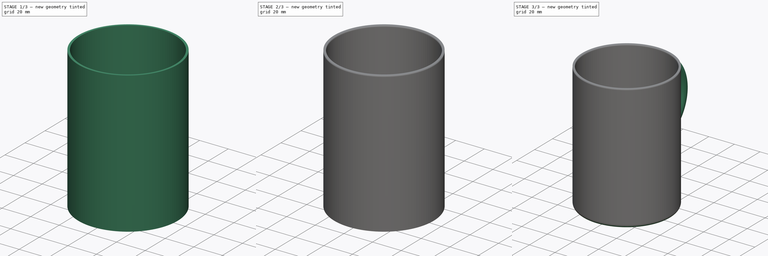
[diagram: build sequence overview — one tinted view per stage of 3, left to right]
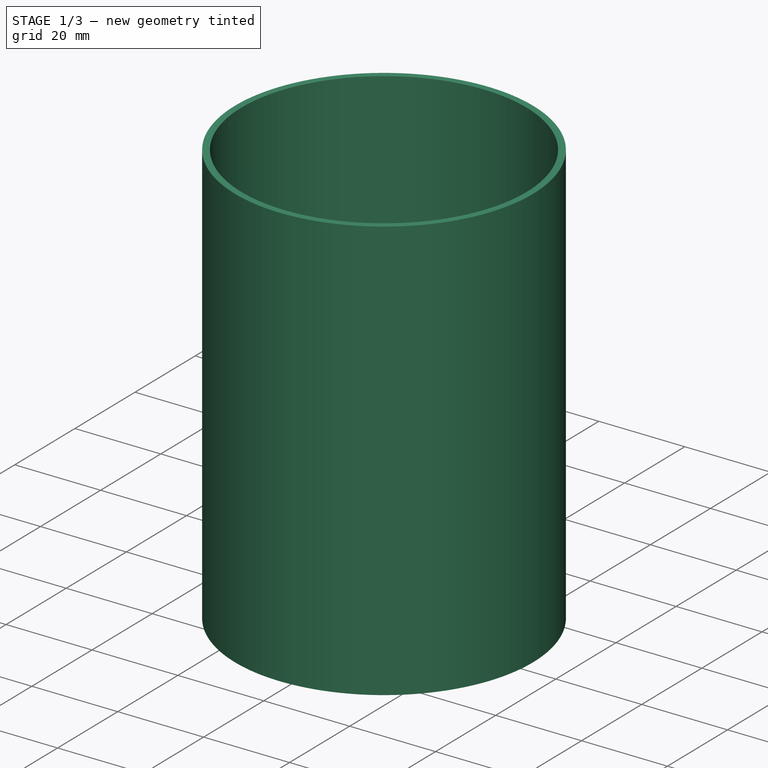
[diagram: stage 1 of 3 — iso view after this stage's code; geometry added in this stage tinted green]
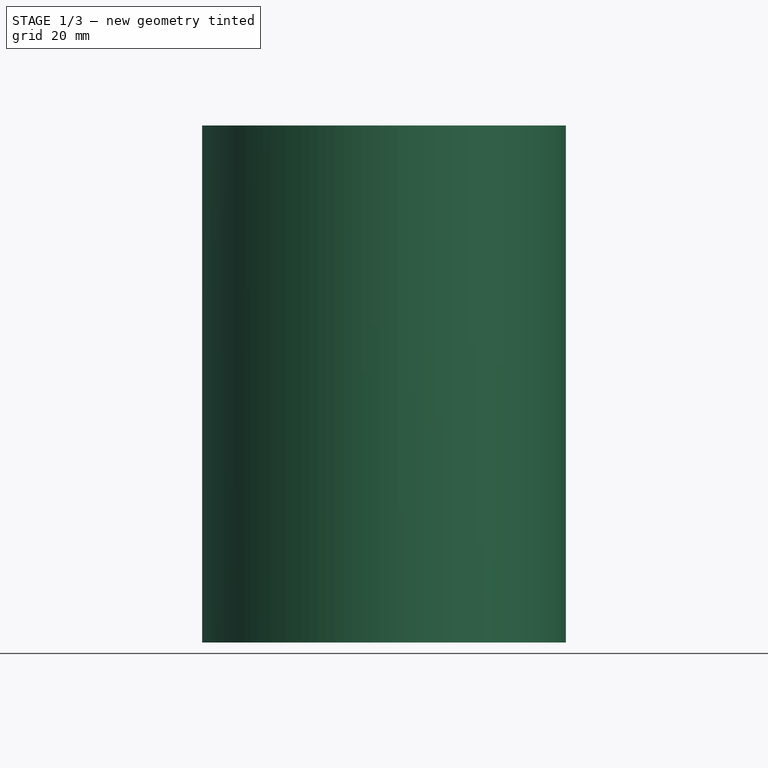
[diagram: stage 1 of 3 — front view after this stage's code; geometry added in this stage tinted green]
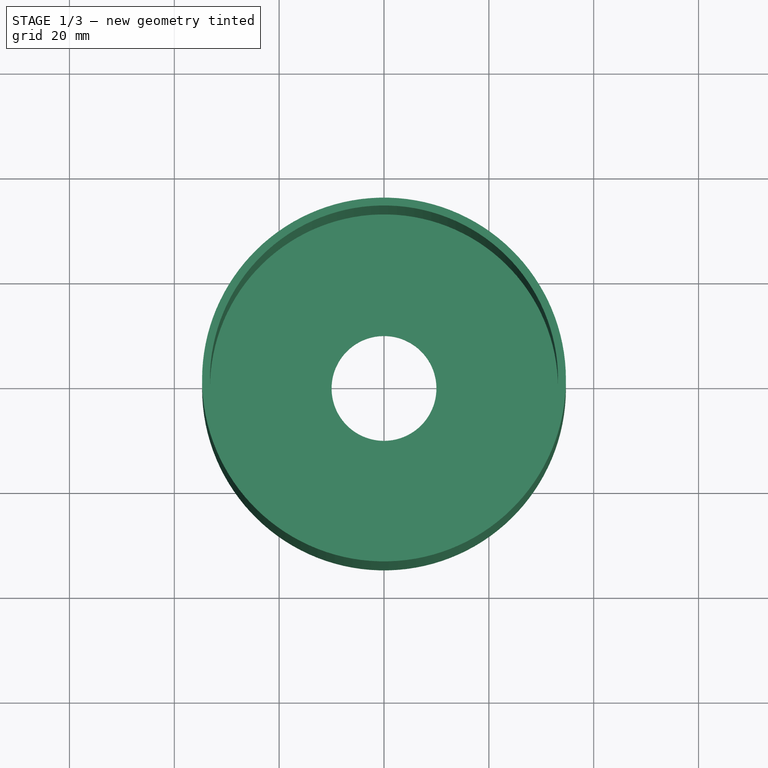
[diagram: stage 1 of 3 — top view after this stage's code; geometry added in this stage tinted green]
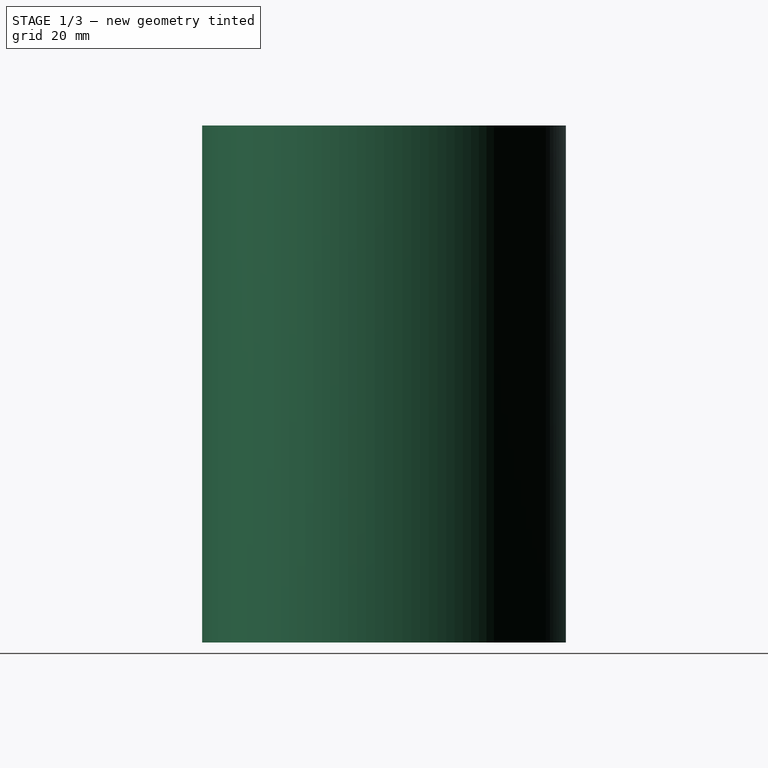
[diagram: stage 1 of 3 — right view after this stage's code; geometry added in this stage tinted green]
FCSTD DOCUMENT  (FreeCAD 2023.131R26244 +5365 (Git))
Label: Beer Cozy with Handle
License: All rights reserved
LicenseURL: http://en.wikipedia.org/wiki/All_rights_reserved
objects: Sketcher::SketchObject×3, PartDesign::Fillet×3, PartDesign::Pad×2, Spreadsheet::Sheet×1, PartDesign::Pocket×1, PartDesign::AdditiveTorus×1, PartDesign::Body×1
note: 28 computed .brp shape members not serialized (recipe doc carries the construction recipe); baked Part::Feature solids carry a one-line shape summary decoded from their .brp

FEATURE [Spreadsheet::Sheet] Spreadsheet  label="Parameters"
  PythonMode = false
  ShowCells = 0
  TreeRank = 1
  cells = A2=Can Diameter; B2(Can_Diameter)=66.40000000000001; A3=Can Height; B3(Can_Height)=122; A4=Can Bottom Depression Diameter; B4(Depression_Diameter)=45.5; A5=Can Bottom Depression Depth; B5(Depression_Depth)=5; A6=Finger Hole Diameter; B6(Finger_Hole_Diameter)=20; A7=Wall Thickness; B7(Wall_Thickness)=1.5; A8=Ring Diameter; B8(Ring_Diameter)=50; A9=Ring Thickness; B9(Ring_Thickness)=10
FEATURE [Sketcher::SketchObject] Sketch
  ArcFitTolerance = 1e-06
  AttachmentSupport = -> [XY_Plane]
  ExternalBSplineMaxDegree = 5
  ExternalBSplineTolerance = 0.0001
  FullyConstrained = true
  InternalTolerance = 1e-06
  InvalidShape = false
  MakeInternals = false
  MapMode = 5
  Support = -> [XY_Plane]
  TreeRank = 12
  ValidateShape = true
  expr: Constraints[1] = <<Parameters>>.Can_Diameter + 2 * <<Parameters>>.Wall_Thickness
  expr: Constraints[3] = <<Parameters>>.Finger_Hole_Diameter
  sketch-geometry (2):
    g0: Circle CenterX=0 CenterY=0 CenterZ=0 NormalX=0 NormalY=0 NormalZ=1 AngleXU=0 Radius=34.7
    g1: Circle CenterX=0 CenterY=0 CenterZ=0 NormalX=0 NormalY=0 NormalZ=1 AngleXU=0 Radius=10
  constraints (4):
    c: Coincident(g0,g-1)
    c: Diameter(g0) = 69.4
    c: Coincident(g1,g0)
    c: Diameter(g1) = 20
FEATURE [PartDesign::Pad] Pad  label="Outside Shape"
  AddSubType = 0
  AlongSketchNormal = false
  AutoTaperInnerAngle = true
  CheckUpToFaceLimits = true
  ClaimChildren = false
  Direction = (0,0,1)
  Fit = 0
  FitJoin = 0
  InnerFit = 0
  InnerFitJoin = 0
  InvalidShape = false
  Length = 98.6
  Length2 = 100
  Linearize = true
  NewSolid = false
  Profile = -> Sketch
  Suppress = false
  TaperInnerAngle = 0
  TaperInnerAngleRev = 0
  TreeRank = 13
  Type = 0
  ValidateShape = true
  _ProfileBasedVersion = 1
  expr: Length = <<Parameters>>.Can_Height * 0.8 + 1
FEATURE [Sketcher::SketchObject] Sketch001
  ArcFitTolerance = 1e-06
  AttachmentSupport = -> [Pad]
  ExternalBSplineMaxDegree = 5
  ExternalBSplineTolerance = 0.0001
  FullyConstrained = true
  InternalTolerance = 1e-06
  InvalidShape = false
  MakeInternals = false
  MapMode = 5
  Placement = pos=(0,0,98.6) rot=(0,0,1;0rad)
  Support = -> [Pad]
  TreeRank = 14
  ValidateShape = true
  expr: Constraints[1] = <<Parameters>>.Can_Diameter
  sketch-geometry (1):
    g0: Circle CenterX=0 CenterY=0 CenterZ=0 NormalX=0 NormalY=0 NormalZ=1 AngleXU=0 Radius=33.2
  constraints (2):
    c: Coincident(g0,g-1)
    c: Diameter(g0) = 66.4
FEATURE [PartDesign::Pocket] Pocket  label="Hole for Can"
  AddSubType = 1
  AutoTaperInnerAngle = true
  BaseFeature = -> Pad
  CheckUpToFaceLimits = true
  ClaimChildren = false
  Fit = 0
  FitJoin = 0
  InnerFit = 0
  InnerFitJoin = 0
  InvalidShape = false
  Length = 97.6
  Length2 = 100
  Linearize = true
  NewSolid = false
  Profile = -> Sketch001
  Suppress = false
  TaperInnerAngle = 0
  TaperInnerAngleRev = 0
  TreeRank = 15
  Type = 0
  ValidateShape = true
  _ProfileBasedVersion = 1
  _Version = 1
  expr: Length = <<Parameters>>.Can_Height * 0.8
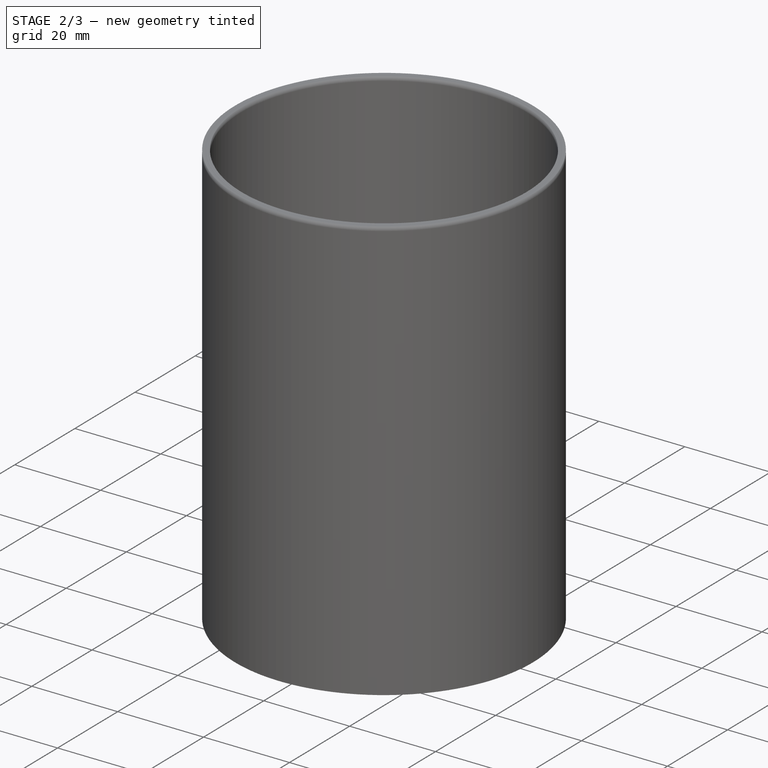
[diagram: stage 2 of 3 — iso view after this stage's code; geometry added in this stage tinted green]
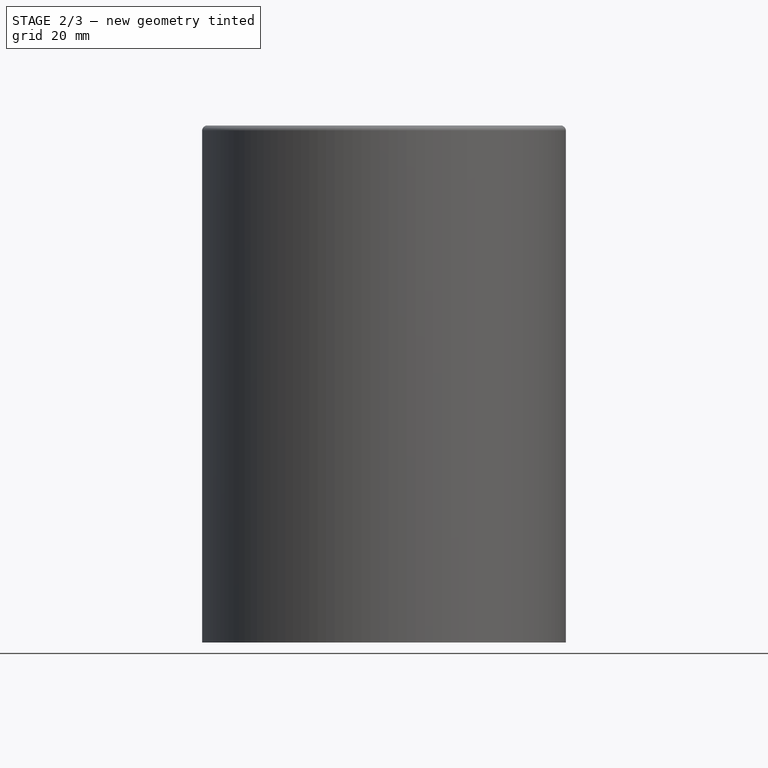
[diagram: stage 2 of 3 — front view after this stage's code; geometry added in this stage tinted green]
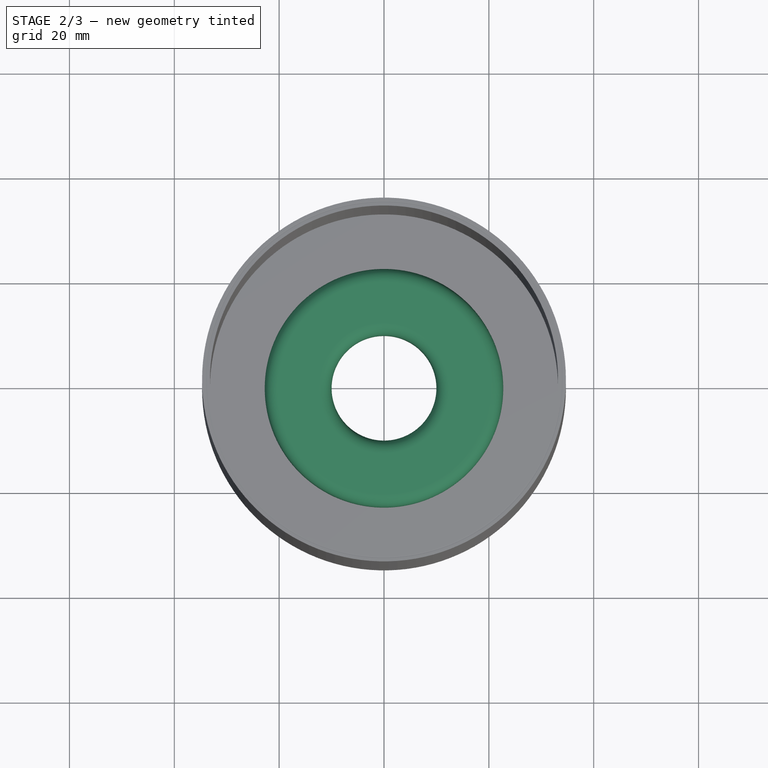
[diagram: stage 2 of 3 — top view after this stage's code; geometry added in this stage tinted green]
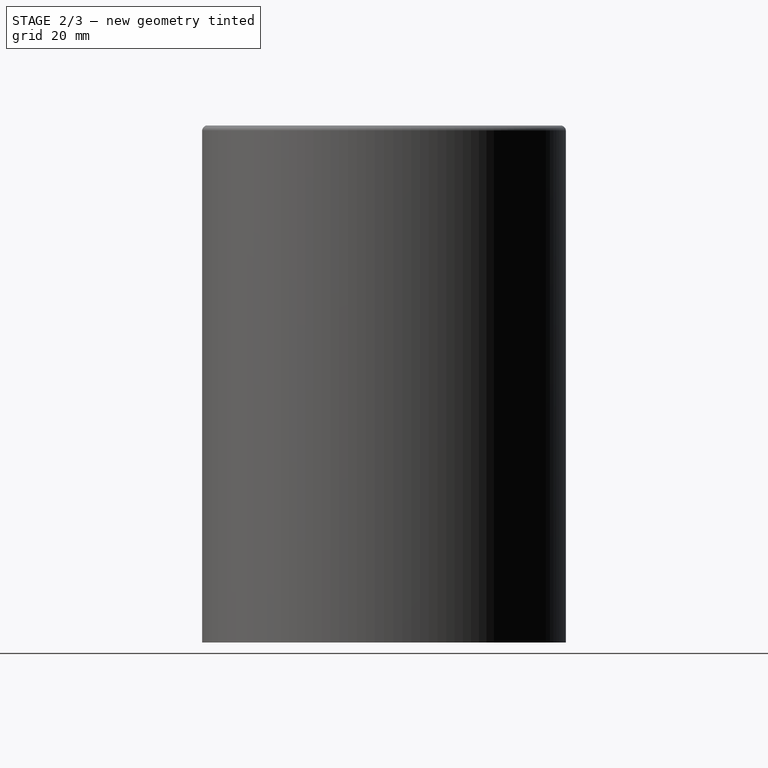
[diagram: stage 2 of 3 — right view after this stage's code; geometry added in this stage tinted green]
FEATURE [Sketcher::SketchObject] Sketch002
  ArcFitTolerance = 1e-06
  AttachmentSupport = -> [Pocket]
  ExternalBSplineMaxDegree = 5
  ExternalBSplineTolerance = 0.0001
  FullyConstrained = true
  InternalTolerance = 1e-06
  InvalidShape = false
  MakeInternals = false
  MapMode = 5
  Placement = pos=(0,0,1) rot=(0,0,1;0rad)
  Support = -> [Pocket]
  TreeRank = 16
  ValidateShape = true
  expr: Constraints[1] = <<Parameters>>.Depression_Diameter
  expr: Constraints[3] = <<Parameters>>.Finger_Hole_Diameter
  sketch-geometry (2):
    g0: Circle CenterX=0 CenterY=0 CenterZ=0 NormalX=0 NormalY=0 NormalZ=1 AngleXU=0 Radius=22.75
    g1: Circle CenterX=0 CenterY=0 CenterZ=0 NormalX=0 NormalY=0 NormalZ=1 AngleXU=0 Radius=10
  constraints (4):
    c: Coincident(g0,g-1)
    c: Diameter(g0) = 45.5
    c: Coincident(g1,g0)
    c: Diameter(g1) = 20
FEATURE [PartDesign::Pad] Pad001  label="Depression Negative"
  AddSubType = 0
  AlongSketchNormal = false
  AutoTaperInnerAngle = true
  BaseFeature = -> Pocket
  CheckUpToFaceLimits = true
  ClaimChildren = false
  Direction = (0,0,1)
  Fit = 0
  FitJoin = 0
  InnerFit = 0
  InnerFitJoin = 0
  InvalidShape = false
  Length = 5
  Length2 = 100
  Linearize = true
  NewSolid = false
  Profile = -> Sketch002
  Suppress = false
  TaperInnerAngle = 0
  TaperInnerAngleRev = 0
  TreeRank = 17
  Type = 0
  ValidateShape = true
  _ProfileBasedVersion = 1
  expr: Length = <<Parameters>>.Depression_Depth
FEATURE [PartDesign::Fillet] Fillet  label="Depression Negative Fillet"
  AddSubType = 0
  Base = -> Pad001 [Face8]
  BaseFeature = -> Pad001
  InvalidShape = false
  NewSolid = false
  Radius = 2.5
  SupportTransform = false
  Suppress = false
  TreeRank = 18
  ValidateShape = true
  expr: Radius = <<Parameters>>.Depression_Depth / 2
FEATURE [PartDesign::Fillet] Fillet001  label="Top Fillet"
  AddSubType = 0
  Base = -> Fillet [Face9]
  BaseFeature = -> Fillet
  InvalidShape = false
  NewSolid = false
  Radius = 1
  SupportTransform = false
  Suppress = false
  TreeRank = 19
  ValidateShape = true
  expr: Radius = <<Parameters>>.Wall_Thickness - 0.5
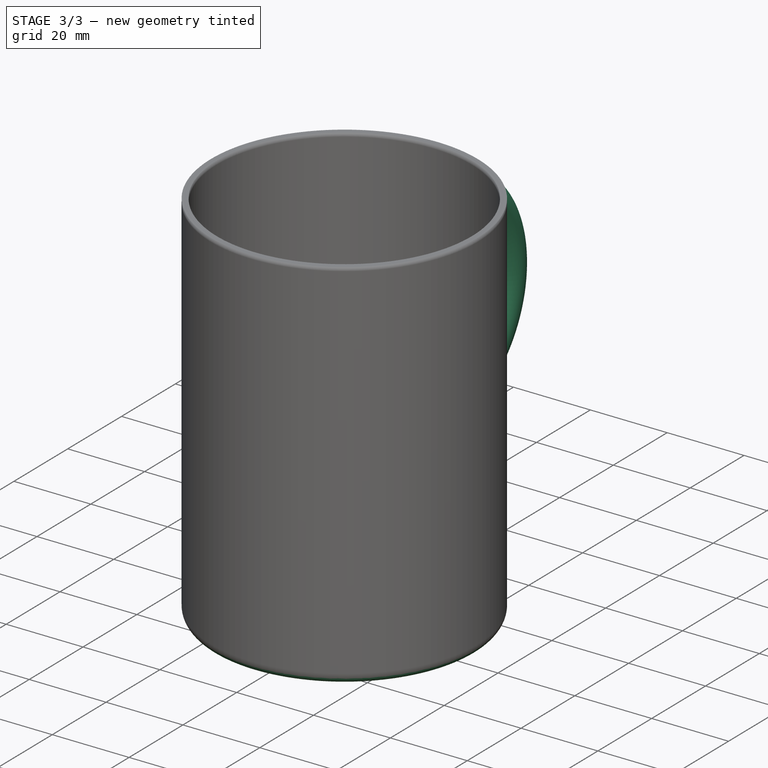
[diagram: stage 3 of 3 — iso view after this stage's code; geometry added in this stage tinted green]
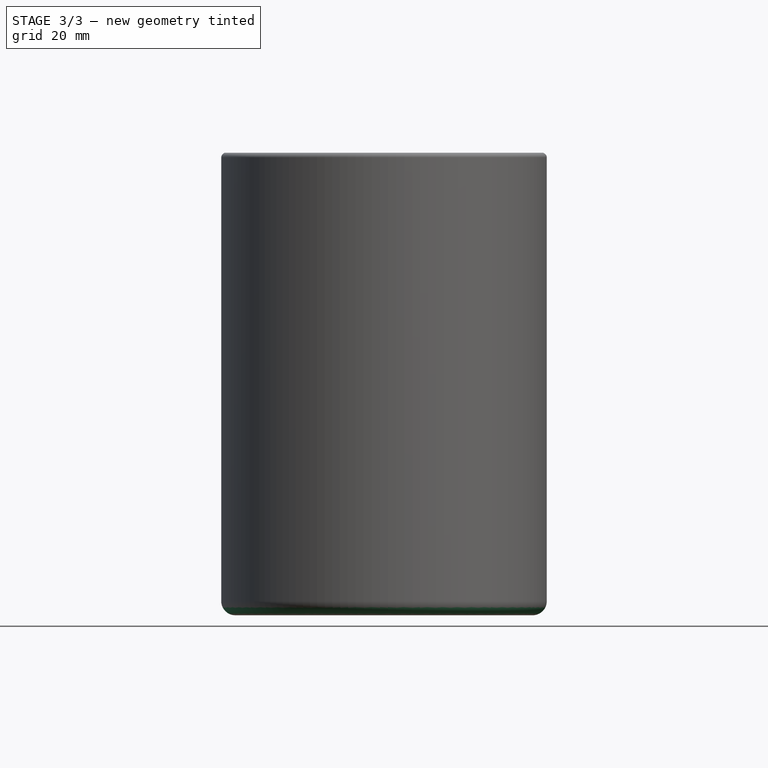
[diagram: stage 3 of 3 — front view after this stage's code; geometry added in this stage tinted green]
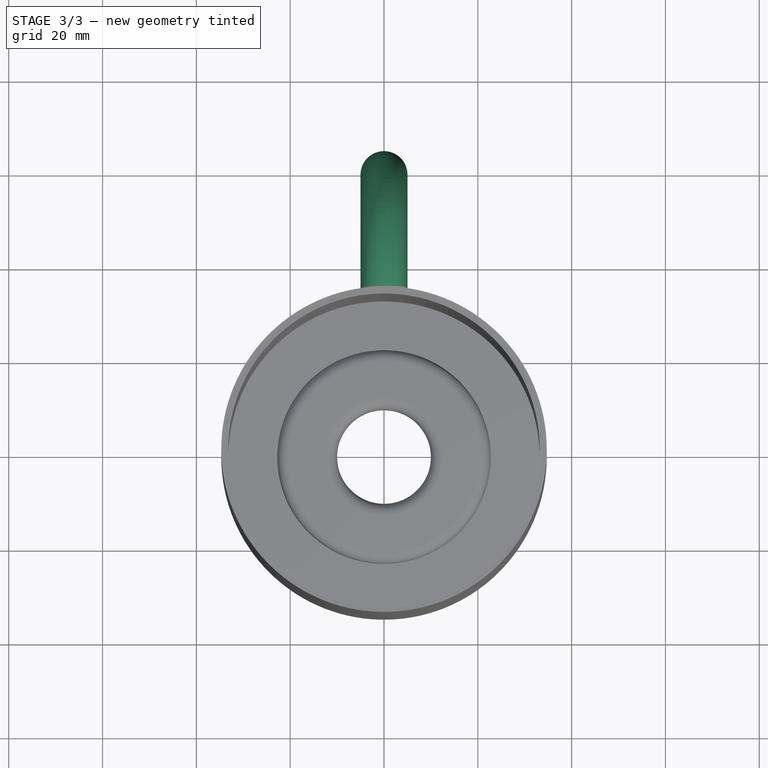
[diagram: stage 3 of 3 — top view after this stage's code; geometry added in this stage tinted green]
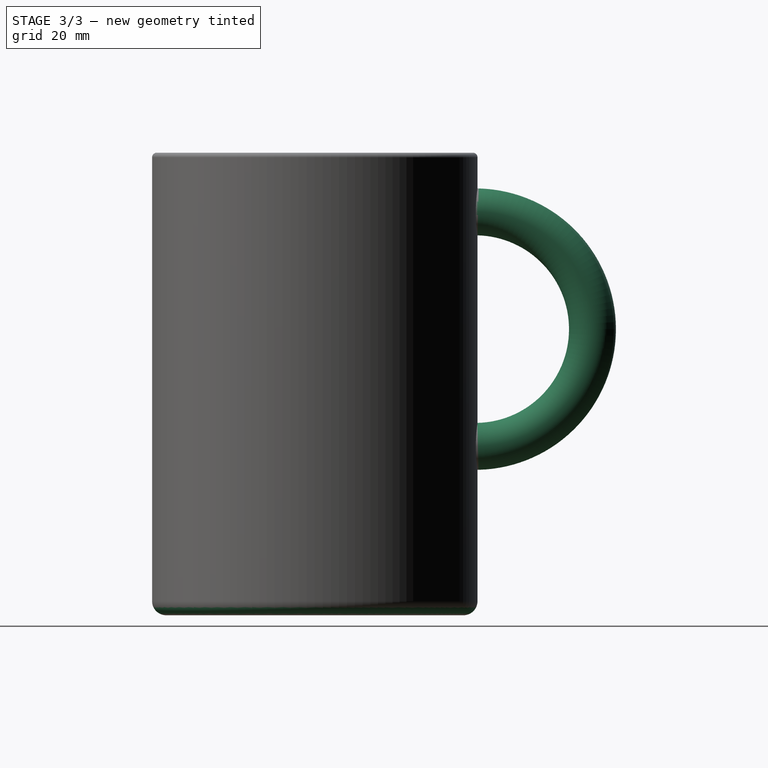
[diagram: stage 3 of 3 — right view after this stage's code; geometry added in this stage tinted green]
FEATURE [PartDesign::Fillet] Fillet002  label="Bottom Fillet"
  AddSubType = 0
  Base = -> Fillet001 [Edge3]
  BaseFeature = -> Fillet001
  InvalidShape = false
  NewSolid = false
  Radius = 3
  SupportTransform = false
  Suppress = false
  TreeRank = 21
  ValidateShape = true
FEATURE [PartDesign::AdditiveTorus] Torus  label="Handle"
  AddSubType = 0
  Angle1 = -180
  Angle2 = 180
  Angle3 = 180
  AttacherType = Attacher::AttachEngine3D
  AttachmentOffset = pos=(34.2,61,0) rot=(0,0,-1;1.5708rad)
  AttachmentSupport = -> [YZ_Plane]
  BaseFeature = -> Fillet002
  InvalidShape = true
  MapMode = 5
  NewSolid = false
  Placement = pos=(-6e-15,34.2,61) rot=(0,1,0;1.5708rad)
  Radius1 = 25
  Radius2 = 5
  Support = -> [YZ_Plane]
  Suppress = false
  TreeRank = 20
  ValidateShape = true
  expr: AttachmentOffset.Base.x = <<Parameters>>.Can_Diameter / 2 + <<Parameters>>.Wall_Thickness - 0.5
  expr: AttachmentOffset.Base.y = <<Parameters>>.Can_Height / 2
  expr: Radius1 = Spreadsheet.Ring_Diameter / 2
  expr: Radius2 = <<Parameters>>.Ring_Thickness / 2
FEATURE [PartDesign::Body] Body
  AutoGroupSolids = false
  ClaimAllChildren = false
  ExportMode = 0
  FixShape = 1
  Group = -> [Sketch,Pad,Sketch001,Pocket,Sketch002,Pad001,Fillet,Fillet001,Fillet002,Torus]
  InvalidShape = false
  Origin = -> Origin
  Tip = -> Torus
  TreeRank = 11
  ValidateShape = true
  _ExportChildren = -> [Pad,Pocket,Pad001,Fillet,Fillet001,Fillet002,Torus]
  _GroupVersion = 1
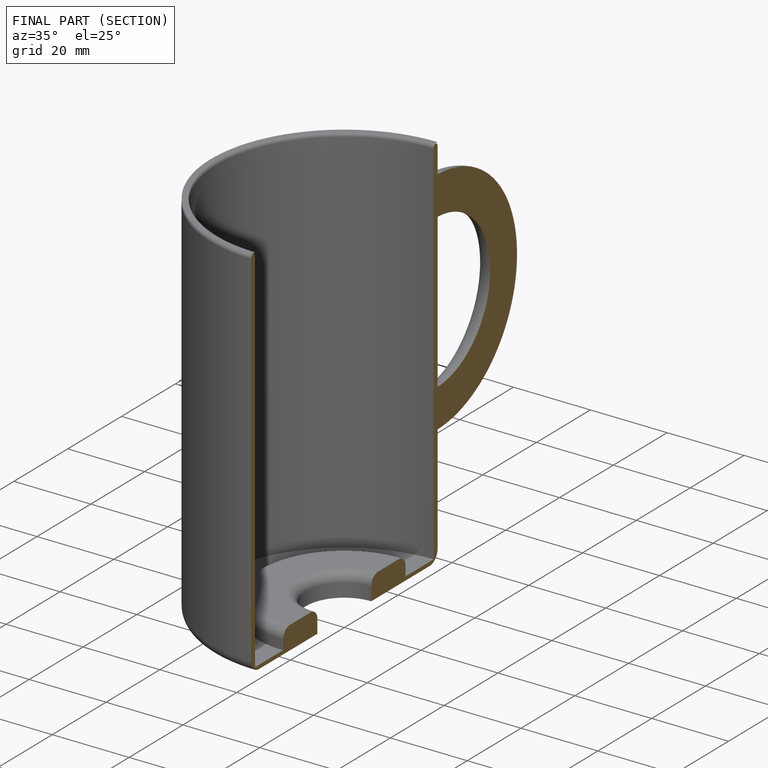
[diagram: finished part — half-section view (interior)]
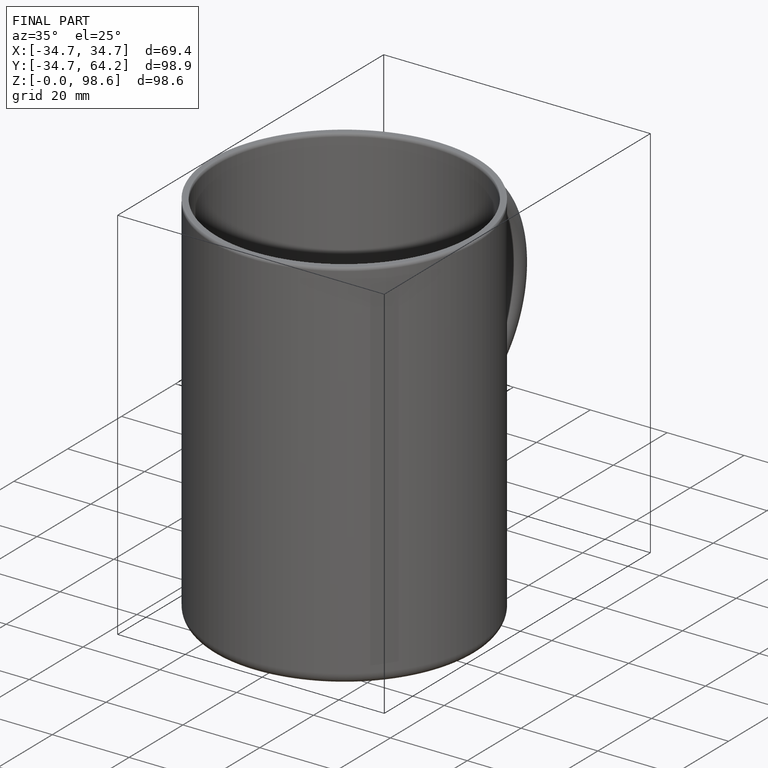
[diagram: finished part — iso view with bounding-box wireframe]
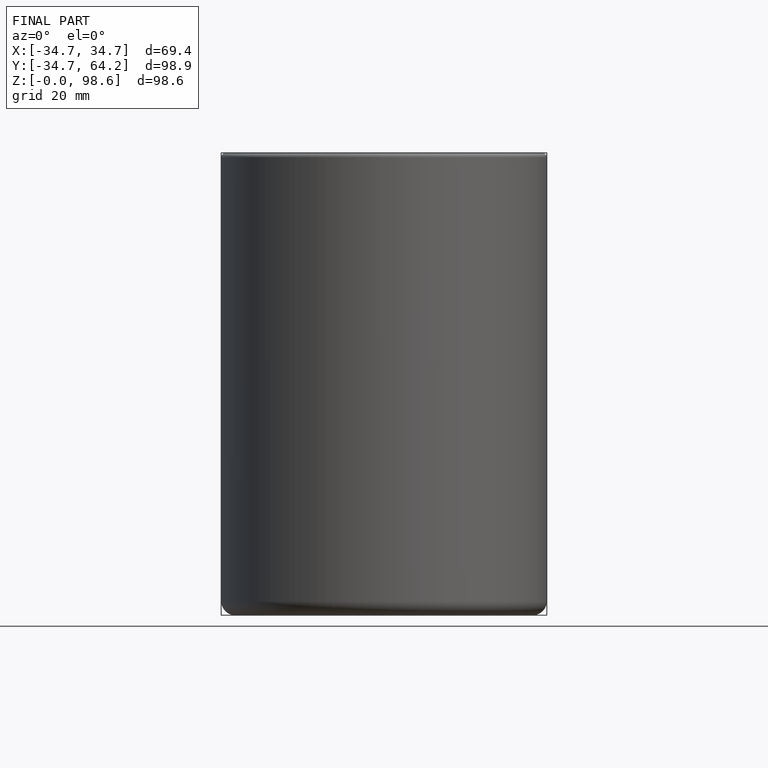
[diagram: finished part — front view with bounding-box wireframe]
